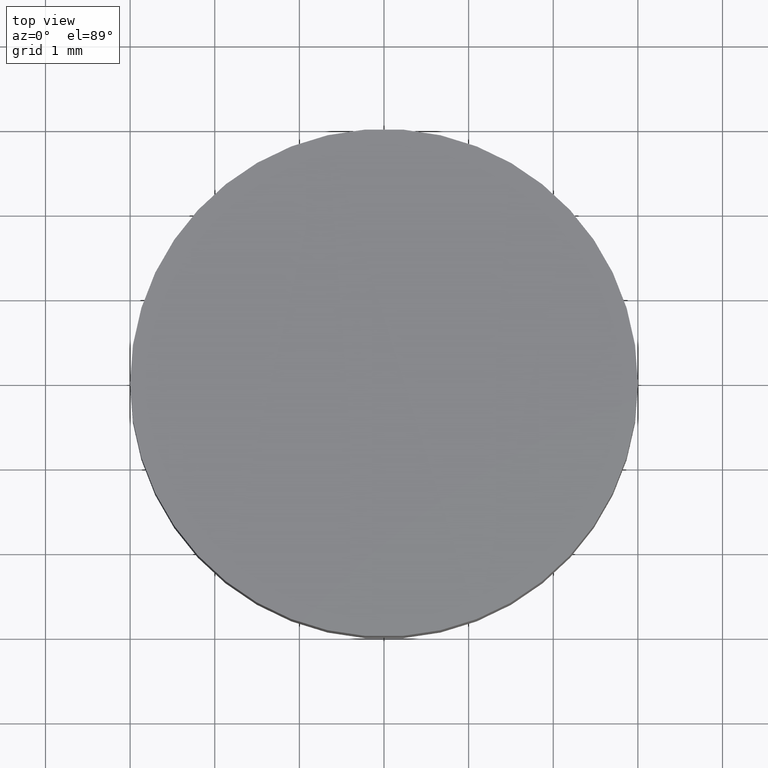
[diagram: clean part render]
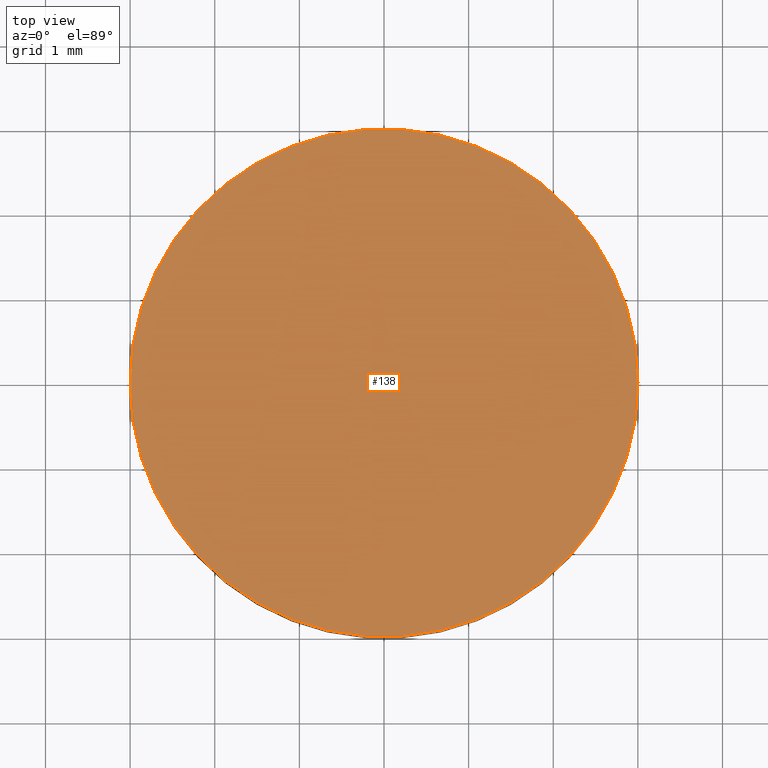
[diagram: same view with one face highlighted and labeled with its STEP entity id]
A machine part, top view. The second image highlights one B-rep face of the part: STEP entity #138.
In plain terms, the highlighted planar face has unit normal (0, 0, 1).
Its self-contained STEP definition (entity closure, byte-faithful):
#18 = CARTESIAN_POINT ( 'NONE',  ( -3.000000000000000000, 0.000000000000000000, 4.336808689942017736E-16 ) ) ;
#19 = EDGE_CURVE ( 'NONE', #196, #116, #84, .T. ) ;
#20 = PLANE ( 'NONE',  #58 ) ;
#29 = CIRCLE ( 'NONE', #141, 3.000000000000000000 ) ;
#58 = AXIS2_PLACEMENT_3D ( 'NONE', #68, #144, #119 ) ;
#64 = CARTESIAN_POINT ( 'NONE',  ( 0.000000000000000000, 0.000000000000000000, 4.336808689942017736E-16 ) ) ;
#68 = CARTESIAN_POINT ( 'NONE',  ( 0.000000000000000000, 0.000000000000000000, 1.836970198721030181E-16 ) ) ;
#73 = CARTESIAN_POINT ( 'NONE',  ( 0.000000000000000000, 0.000000000000000000, 4.336808689942017736E-16 ) ) ;
#84 = CIRCLE ( 'NONE', #155, 3.000000000000000000 ) ;
#91 = DIRECTION ( 'NONE',  ( -1.000000000000000000, 0.000000000000000000, 0.000000000000000000 ) ) ;
#108 = DIRECTION ( 'NONE',  ( -0.000000000000000000, -0.000000000000000000, -1.000000000000000000 ) ) ;
#115 = DIRECTION ( 'NONE',  ( -0.000000000000000000, -0.000000000000000000, -1.000000000000000000 ) ) ;
#116 = VERTEX_POINT ( 'NONE', #18 ) ;
#119 = DIRECTION ( 'NONE',  ( 1.000000000000000000, 0.000000000000000000, -0.000000000000000000 ) ) ;
#138 = ADVANCED_FACE ( 'NONE', ( #143 ), #20, .T. ) ;
#141 = AXIS2_PLACEMENT_3D ( 'NONE', #64, #115, #152 ) ;
#143 = FACE_OUTER_BOUND ( 'NONE', #158, .T. ) ;
#144 = DIRECTION ( 'NONE',  ( 0.000000000000000000, 0.000000000000000000, 1.000000000000000000 ) ) ;
#145 = ORIENTED_EDGE ( 'NONE', *, *, #191, .F. ) ;
#147 = ORIENTED_EDGE ( 'NONE', *, *, #19, .F. ) ;
#152 = DIRECTION ( 'NONE',  ( -1.000000000000000000, 0.000000000000000000, 0.000000000000000000 ) ) ;
#155 = AXIS2_PLACEMENT_3D ( 'NONE', #73, #108, #91 ) ;
#158 = EDGE_LOOP ( 'NONE', ( #145, #147 ) ) ;
#189 = CARTESIAN_POINT ( 'NONE',  ( 3.000000000000000000, 3.673940397442059868E-16, 4.336808689942017736E-16 ) ) ;
#191 = EDGE_CURVE ( 'NONE', #116, #196, #29, .T. ) ;
#196 = VERTEX_POINT ( 'NONE', #189 ) ;